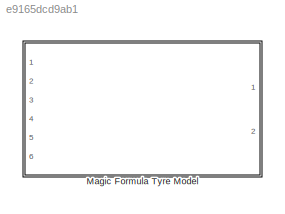
MODEL slx_e9165dcd9ab1
KIND library
CONFIG AbsTol = auto
CONFIG EnableMultiTasking = off
CONFIG FixedStep = auto
CONFIG MaxStep = auto
CONFIG MinStep = auto
CONFIG RelTol = 1e-3
CONFIG SampleTimeConstraint = Unconstrained
CONFIG SolverName = VariableStepAuto
CONFIG StartTime = 0.0
CONFIG StopTime = 10.0
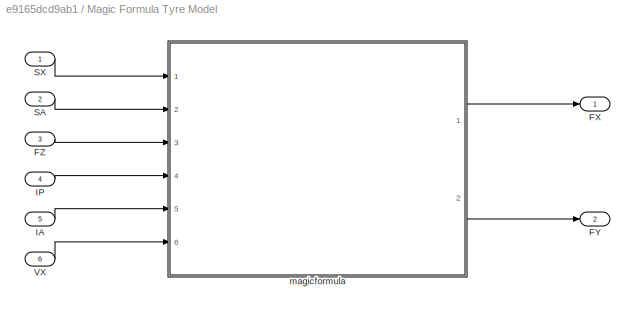
BLOCK [SubSystem] Magic Formula Tyre Model
  Ports = [6, 2]
  RequestExecContextInheritance = off
BLOCK [Outport] Magic Formula Tyre Model/FX
  Unit = N
BLOCK [Outport] Magic Formula Tyre Model/FY
  Port = 2
  Unit = N
BLOCK [Inport] Magic Formula Tyre Model/FZ
  Port = 3
  Unit = N
BLOCK [Inport] Magic Formula Tyre Model/IA
  Port = 5
  Unit = rad
BLOCK [Inport] Magic Formula Tyre Model/IP
  Port = 4
  Unit = Pa
BLOCK [Inport] Magic Formula Tyre Model/SA
  Port = 2
  Unit = rad
BLOCK [Inport] Magic Formula Tyre Model/SX
  Unit = 1
BLOCK [Inport] Magic Formula Tyre Model/VX
  Port = 6
  Unit = m/s
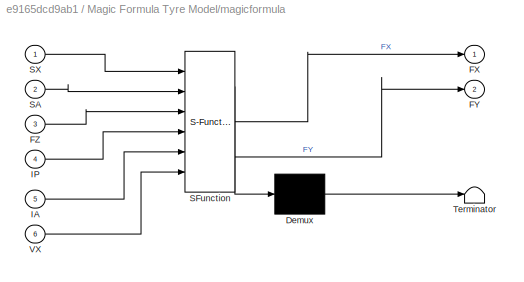
BLOCK [SubSystem] Magic Formula Tyre Model/magicformula
  ErrorFcn = Stateflow.Translate.translate
  PermitHierarchicalResolution = ExplicitOnly
  Ports = [6, 2]
  RequestExecContextInheritance = off
  SFBlockType = MATLAB Function
  TreatAsAtomicUnit = on
BLOCK [Demux] Magic Formula Tyre Model/magicformula/ Demux 
  Outputs = 1
  Ports = [1, 1]
BLOCK [S-Function] Magic Formula Tyre Model/magicformula/ SFunction 
  EnableBusSupport = off
  FunctionName = sf_sfun
  Parameters = params,side,version
  PortCounts = [6 3]
  Ports = [6, 3]
  SFcnIsStateOwnerBlock = off
  SFunctionDeploymentMode = off
  Tag = Stateflow S-Function 1
BLOCK [Terminator] Magic Formula Tyre Model/magicformula/ Terminator 
BLOCK [Outport] Magic Formula Tyre Model/magicformula/FX
BLOCK [Outport] Magic Formula Tyre Model/magicformula/FY
  Port = 2
BLOCK [Inport] Magic Formula Tyre Model/magicformula/FZ
  Port = 3
BLOCK [Inport] Magic Formula Tyre Model/magicformula/IA
  Port = 5
BLOCK [Inport] Magic Formula Tyre Model/magicformula/IP
  Port = 4
BLOCK [Inport] Magic Formula Tyre Model/magicformula/SA
  Port = 2
BLOCK [Inport] Magic Formula Tyre Model/magicformula/SX
BLOCK [Inport] Magic Formula Tyre Model/magicformula/VX
  Port = 6
LINE Magic Formula Tyre Model/FZ:1 -> Magic Formula Tyre Model/magicformula:3
LINE Magic Formula Tyre Model/IA:1 -> Magic Formula Tyre Model/magicformula:5
LINE Magic Formula Tyre Model/IP:1 -> Magic Formula Tyre Model/magicformula:4
LINE Magic Formula Tyre Model/SA:1 -> Magic Formula Tyre Model/magicformula:2
LINE Magic Formula Tyre Model/SX:1 -> Magic Formula Tyre Model/magicformula:1
LINE Magic Formula Tyre Model/VX:1 -> Magic Formula Tyre Model/magicformula:6
LINE Magic Formula Tyre Model/magicformula:1 -> Magic Formula Tyre Model/FX:1
LINE Magic Formula Tyre Model/magicformula:2 -> Magic Formula Tyre Model/FY:1
CHART Magic Formula Tyre Model/magicformula states=1 transitions=1
  STATE_LABEL 'eML_blk_kernel()'
  STATE_LABEL 'SCRIPT:\nfunction [FX,FY] = magicformula(SX,SA,FZ,IP,IA,VX,params,side,version)\n[FX,FY] = magicformula(params,SX,SA,FZ,IP,IA,VX,side,double(version));\nend'
CHART  states=0 transitions=0
